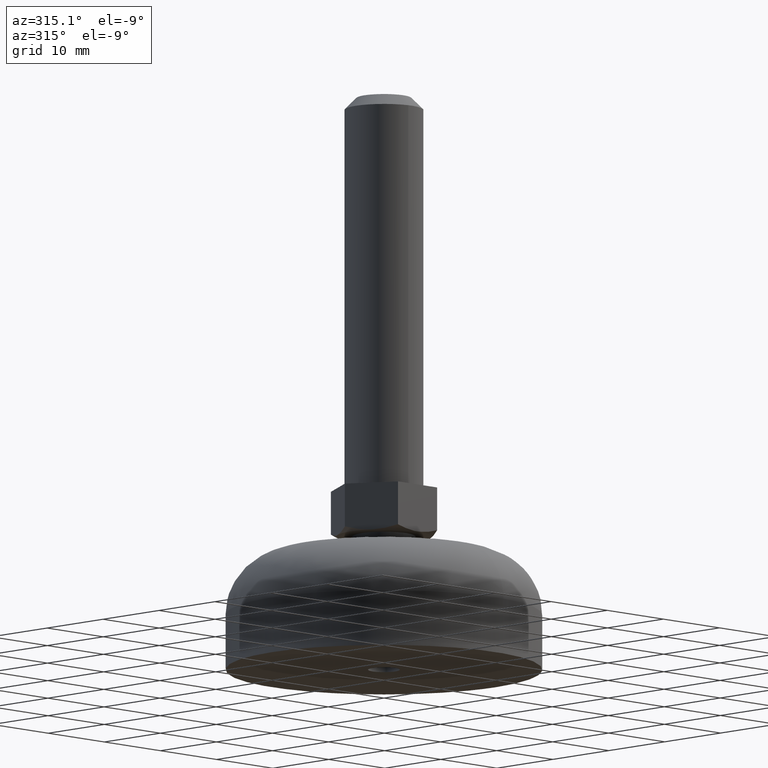
[diagram: clean part render]
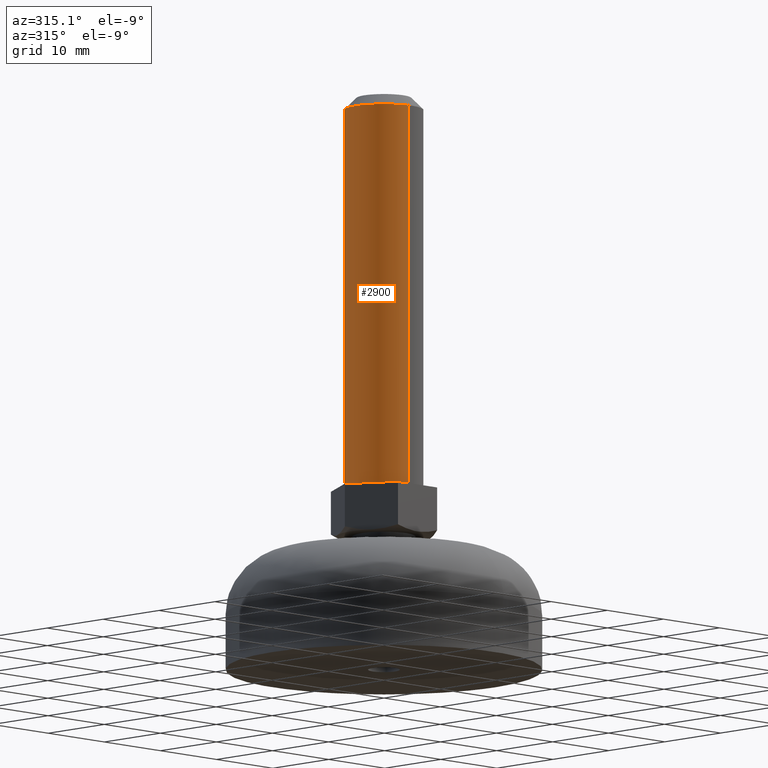
[diagram: same view with one face highlighted and labeled with its STEP entity id]
A machine part, auxiliary view. The second image highlights one B-rep face of the part: STEP entity #2900.
In plain terms, the highlighted face is a freeform B-spline surface patch.
Its self-contained STEP definition (entity closure, byte-faithful):
#2653=CARTESIAN_POINT('',(-0.620634617903624,-4.961331743698468,71.500000000000000));
#2654=VERTEX_POINT('',#2653);
#2711=CARTESIAN_POINT('',(0.043632677550883,4.999809615320297,71.500000000000071));
#2712=VERTEX_POINT('',#2711);
#2718=CARTESIAN_POINT('',(-5.0,0.0,71.500000000000000));
#2719=VERTEX_POINT('',#2718);
#2720=CARTESIAN_POINT('',(-5.0,0.0,71.500000000000000));
#2721=CARTESIAN_POINT('',(-5.000000000000001,5.000000000000001,71.500000000000000));
#2722=CARTESIAN_POINT('',(0.0,5.0,71.500000000000000));
#2723=CARTESIAN_POINT('',(0.021816754221559,5.000000000000001,71.499999999999986));
#2724=CARTESIAN_POINT('',(0.043632677550883,4.999809615320297,71.500000000000071));
#2732=(BOUNDED_CURVE()B_SPLINE_CURVE(2,(#2720,#2721,#2722,#2723,#2724),.UNSPECIFIED.,.F.,.U.)B_SPLINE_CURVE_WITH_KNOTS((3,2,3),(0.500000000000000,0.750000000000000,0.751539894343304),.UNSPECIFIED.)CURVE()GEOMETRIC_REPRESENTATION_ITEM()RATIONAL_B_SPLINE_CURVE((1.0,0.707106781186548,1.0,0.998195901556628,0.996414028081157))REPRESENTATION_ITEM(''));
#2733=EDGE_CURVE('',#2719,#2712,#2732,.T.);
#2735=CARTESIAN_POINT('',(-0.620634617903624,-4.961331743698468,71.500000000000000));
#2736=CARTESIAN_POINT('',(-5.0,-4.413497835188891,71.500000000000000));
#2737=CARTESIAN_POINT('',(-5.0,0.0,71.500000000000000));
#2745=(BOUNDED_CURVE()B_SPLINE_CURVE(2,(#2735,#2736,#2737),.UNSPECIFIED.,.F.,.U.)B_SPLINE_CURVE_WITH_KNOTS((3,3),(0.271473745668591,0.500000000000000),.UNSPECIFIED.)CURVE()GEOMETRIC_REPRESENTATION_ITEM()RATIONAL_B_SPLINE_CURVE((0.954005785993562,0.732264839141968,1.0))REPRESENTATION_ITEM(''));
#2746=EDGE_CURVE('',#2654,#2719,#2745,.T.);
#2830=CARTESIAN_POINT('',(-0.550585379460962,-4.970094585665528,72.712500000000020));
#2831=CARTESIAN_POINT('',(-0.585526439340948,-4.965723617579523,72.712500000000006));
#2832=CARTESIAN_POINT('',(-5.038664152512223,-4.408656290666105,72.712500000000020));
#2833=CARTESIAN_POINT('',(-4.999809615320855,0.043632677491869,72.712500000000020));
#2834=CARTESIAN_POINT('',(-4.956176937828985,5.043442292812725,72.712500000000020));
#2835=CARTESIAN_POINT('',(0.077477366271535,4.999514257196454,72.712500000000006));
#2836=CARTESIAN_POINT('',(0.111132791980697,4.999220550745848,72.712500000000006));
#2837=CARTESIAN_POINT('',(-0.550585379460962,-4.970094585665528,21.757187500000001));
#2838=CARTESIAN_POINT('',(-0.585526439340948,-4.965723617579523,21.757187500000001));
#2839=CARTESIAN_POINT('',(-5.038664152512223,-4.408656290666105,21.757187500000008));
#2840=CARTESIAN_POINT('',(-4.999809615320855,0.043632677491869,21.757187500000001));
#2841=CARTESIAN_POINT('',(-4.956176937828985,5.043442292812725,21.757187500000001));
#2842=CARTESIAN_POINT('',(0.077477366271535,4.999514257196454,21.757187499999993));
#2843=CARTESIAN_POINT('',(0.111132791980697,4.999220550745848,21.757187499999997));
#2851=(BOUNDED_SURFACE()B_SPLINE_SURFACE(2,1,((#2830,#2837),(#2831,#2838),(#2832,#2839),(#2833,#2840),(#2834,#2841),(#2835,#2842),(#2836,#2843)),.UNSPECIFIED.,.F.,.F.,.U.)B_SPLINE_SURFACE_WITH_KNOTS((3,1,2,1,3),(2,2),(0.0,0.079538451717110,7.701067999382056,15.985339246843960,16.064868296178702),(0.0,50.955312500000019),.UNSPECIFIED.)GEOMETRIC_REPRESENTATION_ITEM()RATIONAL_B_SPLINE_SURFACE(((0.961610461190897,0.961610461190897),(0.959248289690778,0.959248289690778),(0.730538238691624,0.730538238691624),(1.0,1.0),(0.707106781186548,0.707106781186548),(1.002811776504296,1.002811776504296),(1.005623553008592,1.005623553008592)))REPRESENTATION_ITEM('')SURFACE());
#2852=CARTESIAN_POINT('',(-5.0,0.0,23.0));
#2853=VERTEX_POINT('',#2852);
#2854=CARTESIAN_POINT('',(-0.620631688118916,-4.961332110193019,23.000000000000011));
#2855=VERTEX_POINT('',#2854);
#2856=CARTESIAN_POINT('',(-5.0,0.0,23.0));
#2857=CARTESIAN_POINT('',(-5.0,-4.413500461777868,22.999999999999993));
#2858=CARTESIAN_POINT('',(-0.620631688118916,-4.961332110193019,23.000000000000018));
#2866=(BOUNDED_CURVE()B_SPLINE_CURVE(2,(#2856,#2857,#2858),.UNSPECIFIED.,.F.,.U.)B_SPLINE_CURVE_WITH_KNOTS((3,3),(0.500000000000000,0.728526353920877),.UNSPECIFIED.)CURVE()GEOMETRIC_REPRESENTATION_ITEM()RATIONAL_B_SPLINE_CURVE((1.0,0.732264722465648,0.954005979258652))REPRESENTATION_ITEM(''));
#2867=EDGE_CURVE('',#2853,#2855,#2866,.T.);
#2868=ORIENTED_EDGE('',*,*,#2867,.T.);
#2869=CARTESIAN_POINT('',(-0.620634617903624,-4.961331743698468,71.500000000000000));
#2870=CARTESIAN_POINT('',(-0.620631688118916,-4.961332110193019,23.000000000000011));
#2871=QUASI_UNIFORM_CURVE('',1,(#2869,#2870),.UNSPECIFIED.,.F.,.U.);
#2872=EDGE_CURVE('',#2654,#2855,#2871,.T.);
#2873=ORIENTED_EDGE('',*,*,#2872,.F.);
#2874=ORIENTED_EDGE('',*,*,#2746,.T.);
#2875=ORIENTED_EDGE('',*,*,#2733,.T.);
#2876=CARTESIAN_POINT('',(0.043632677597368,4.999809615319935,23.0));
#2877=VERTEX_POINT('',#2876);
#2878=CARTESIAN_POINT('',(0.043632677550883,4.999809615320297,71.500000000000071));
#2879=CARTESIAN_POINT('',(0.043632677597368,4.999809615319935,23.0));
#2880=QUASI_UNIFORM_CURVE('',1,(#2878,#2879),.UNSPECIFIED.,.F.,.U.);
#2881=EDGE_CURVE('',#2712,#2877,#2880,.T.);
#2882=ORIENTED_EDGE('',*,*,#2881,.T.);
#2883=CARTESIAN_POINT('',(0.043632677597368,4.999809615319935,23.000000000000004));
#2884=CARTESIAN_POINT('',(0.021816754209012,5.0,23.000000000000004));
#2885=CARTESIAN_POINT('',(0.0,5.0,23.0));
#2886=CARTESIAN_POINT('',(-5.000000000000001,5.000000000000001,22.999999999999993));
#2887=CARTESIAN_POINT('',(-5.0,0.0,23.0));
#2895=(BOUNDED_CURVE()B_SPLINE_CURVE(2,(#2883,#2884,#2885,#2886,#2887),.UNSPECIFIED.,.F.,.U.)B_SPLINE_CURVE_WITH_KNOTS((3,2,3),(0.248460105657580,0.250000000000000,0.500000000000000),.UNSPECIFIED.)CURVE()GEOMETRIC_REPRESENTATION_ITEM()RATIONAL_B_SPLINE_CURVE((0.996414028083203,0.998195901557663,1.0,0.707106781186548,1.0))REPRESENTATION_ITEM(''));
#2896=EDGE_CURVE('',#2877,#2853,#2895,.T.);
#2897=ORIENTED_EDGE('',*,*,#2896,.T.);
#2898=EDGE_LOOP('',(#2868,#2873,#2874,#2875,#2882,#2897));
#2899=FACE_OUTER_BOUND('',#2898,.T.);
#2900=ADVANCED_FACE('',(#2899),#2851,.T.);